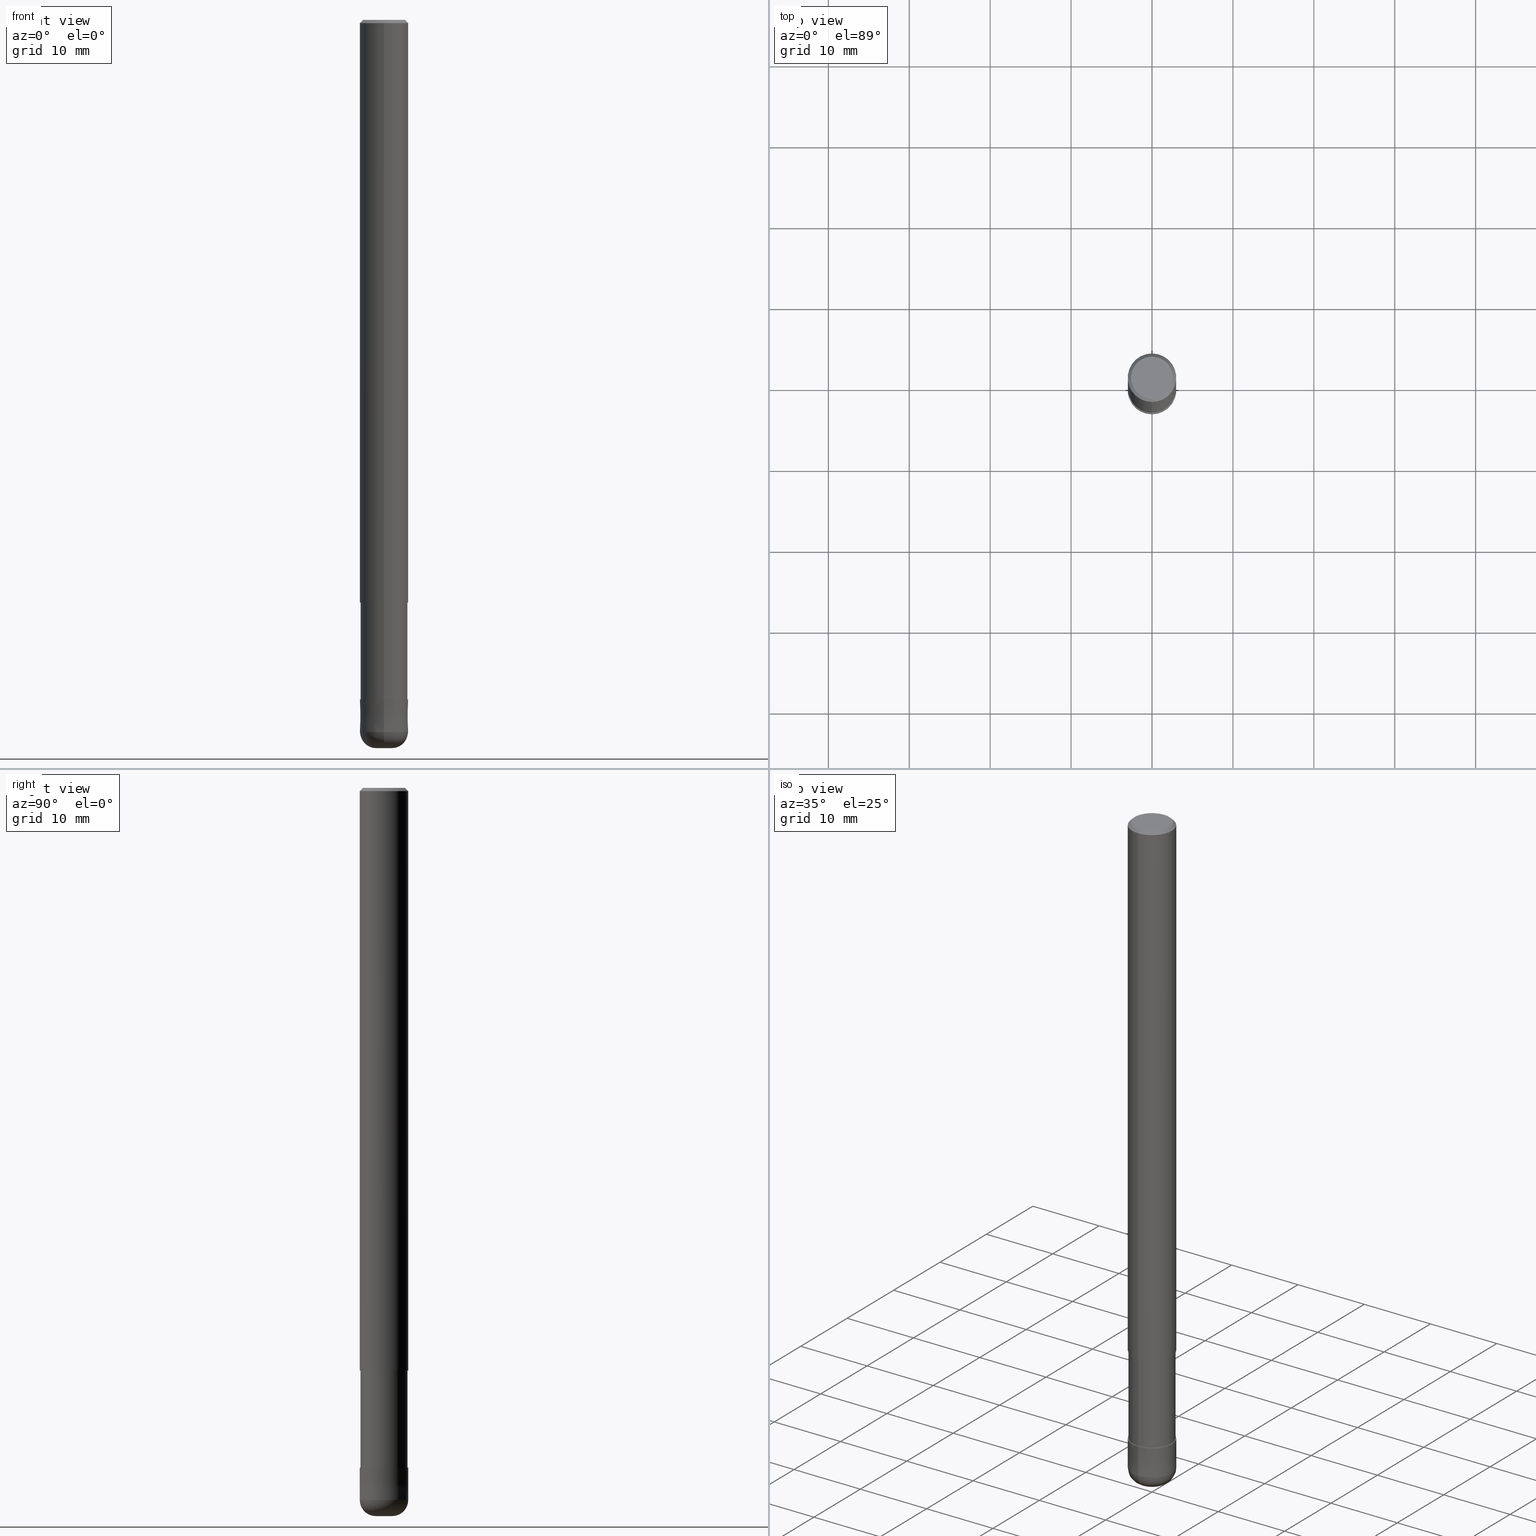
[diagram: canonical four-view strip — front | top / right | iso, engineering-drawing reading convention]
A machine part, canonical four-view strip (front | top / right | iso — engineering-drawing reading convention). The complete STEP part file that produces these views, byte-faithful:
ISO-10303-21;
HEADER;
FILE_DESCRIPTION(('no description'),'unknown implementation level');
FILE_NAME('HRRS4060-20-18-Huellk.stp','  ',('CIMSOURCE GmbH'),('CADClick - KiM GmbH - www.kimweb.de'),'unknown preprocess','ACIS','unknown authorization');
FILE_SCHEMA(('automotive_design'));
ENDSEC;
DATA;
#1=MECHANICAL_DESIGN_GEOMETRIC_PRESENTATION_REPRESENTATION(' ',(#14,#15,#16,#17,#18,#19,#20,#21,#22,#23,#24,#25,#26,#27,#28,#29,#30,#31,#32,#33,#34,#35,#36,#37,#38,#39,#40,#41,#42,#43,#44,#45,#46,#47,#48,#49,#50,#51,#52,#53,#54,#55,#56,#57,#58,#59,#60,#61,#62,#63,#64,#65,#66,#67,#68,#69,#70,#71,#72),#10);
#2=PRODUCT_DEFINITION_CONTEXT('',#73,'design');
#3=APPLICATION_PROTOCOL_DEFINITION('INTERNATIONAL STANDARD','automotive_design',1994,#73);
#4=PRODUCT_CATEGORY_RELATIONSHIP('NONE','NONE',#74,#75);
#5=SHAPE_DEFINITION_REPRESENTATION(#76,#77);
#6=PRODUCT_DEFINITION_CONTEXT('',#78,'design');
#7=APPLICATION_PROTOCOL_DEFINITION('INTERNATIONAL STANDARD','automotive_design',1994,#78);
#8=PRODUCT_CATEGORY_RELATIONSHIP('NONE','NONE',#79,#80);
#9=SHAPE_DEFINITION_REPRESENTATION(#81,#82);
#10= (GEOMETRIC_REPRESENTATION_CONTEXT(3)GLOBAL_UNCERTAINTY_ASSIGNED_CONTEXT((#85))GLOBAL_UNIT_ASSIGNED_CONTEXT((#87,#88,#89))REPRESENTATION_CONTEXT('NONE','WORKSPACE'));
#14=STYLED_ITEM('',(#91),#92);
#15=STYLED_ITEM('',(#93),#94);
#16=STYLED_ITEM('',(#95),#96);
#17=STYLED_ITEM('',(#97),#98);
#18=STYLED_ITEM('',(#99),#100);
#19=STYLED_ITEM('',(#101),#102);
#20=STYLED_ITEM('',(#103),#104);
#21=STYLED_ITEM('',(#105),#106);
#22=STYLED_ITEM('',(#107),#108);
#23=STYLED_ITEM('',(#109),#110);
#24=STYLED_ITEM('',(#111),#112);
#25=STYLED_ITEM('',(#113),#114);
#26=STYLED_ITEM('',(#115),#116);
#27=STYLED_ITEM('',(#117),#118);
#28=STYLED_ITEM('',(#119),#120);
#29=STYLED_ITEM('',(#121),#122);
#30=STYLED_ITEM('',(#123),#124);
#31=STYLED_ITEM('',(#125),#126);
#32=STYLED_ITEM('',(#127),#128);
#33=STYLED_ITEM('',(#129),#130);
#34=STYLED_ITEM('',(#131),#132);
#35=STYLED_ITEM('',(#133),#134);
#36=STYLED_ITEM('',(#135),#136);
#37=STYLED_ITEM('',(#137),#138);
#38=STYLED_ITEM('',(#139),#140);
#39=STYLED_ITEM('',(#141),#142);
#40=STYLED_ITEM('',(#143),#144);
#41=STYLED_ITEM('',(#145),#146);
#42=STYLED_ITEM('',(#147),#148);
#43=STYLED_ITEM('',(#149),#150);
#44=STYLED_ITEM('',(#151),#152);
#45=STYLED_ITEM('',(#153),#154);
#46=STYLED_ITEM('',(#155),#156);
#47=STYLED_ITEM('',(#157),#158);
#48=STYLED_ITEM('',(#159),#160);
#49=STYLED_ITEM('',(#161),#162);
#50=STYLED_ITEM('',(#163),#164);
#51=STYLED_ITEM('',(#165),#166);
#52=STYLED_ITEM('',(#167),#168);
#53=STYLED_ITEM('',(#169),#170);
#54=STYLED_ITEM('',(#171),#172);
#55=STYLED_ITEM('',(#173),#174);
#56=STYLED_ITEM('',(#175),#176);
#57=STYLED_ITEM('',(#177),#178);
#58=STYLED_ITEM('',(#179),#180);
#59=STYLED_ITEM('',(#181),#182);
#60=STYLED_ITEM('',(#183),#184);
#61=STYLED_ITEM('',(#185),#186);
#62=STYLED_ITEM('',(#187),#188);
#63=STYLED_ITEM('',(#189),#190);
#64=STYLED_ITEM('',(#191),#192);
#65=STYLED_ITEM('',(#193),#194);
#66=STYLED_ITEM('',(#195),#196);
#67=STYLED_ITEM('',(#197),#198);
#68=STYLED_ITEM('',(#199),#200);
#69=STYLED_ITEM('',(#201),#202);
#70=STYLED_ITEM('',(#203),#204);
#71=STYLED_ITEM('',(#205),#206);
#72=STYLED_ITEM('',(#207),#208);
#73=APPLICATION_CONTEXT(' ');
#74=PRODUCT_CATEGORY('part','NONE');
#75=PRODUCT_RELATED_PRODUCT_CATEGORY('detail',' ',(#209));
#76=PRODUCT_DEFINITION_SHAPE('NONE','NONE',#210);
#77=ADVANCED_BREP_SHAPE_REPRESENTATION('1',(#104,#211),#10);
#78=APPLICATION_CONTEXT(' ');
#79=PRODUCT_CATEGORY('part','NONE');
#80=PRODUCT_RELATED_PRODUCT_CATEGORY('detail',' ',(#212));
#81=PRODUCT_DEFINITION_SHAPE('NONE','NONE',#213);
#82=ADVANCED_BREP_SHAPE_REPRESENTATION('2',(#184,#214),#10);
#85=UNCERTAINTY_MEASURE_WITH_UNIT(LENGTH_MEASURE(1.0E-006),#87,'','');
#87= (CONVERSION_BASED_UNIT('MILLIMETRE',#217)LENGTH_UNIT()NAMED_UNIT(#220));
#88= (NAMED_UNIT(#222)PLANE_ANGLE_UNIT()SI_UNIT($,.RADIAN.));
#89= (NAMED_UNIT(#222)SOLID_ANGLE_UNIT()SI_UNIT($,.STERADIAN.));
#91=PRESENTATION_STYLE_ASSIGNMENT((#228));
#92=ADVANCED_FACE('',(#229),#230,.T.);
#93=PRESENTATION_STYLE_ASSIGNMENT((#231));
#94=EDGE_CURVE('',#148,#144,#232,.T.);
#95=PRESENTATION_STYLE_ASSIGNMENT((#233));
#96=VERTEX_POINT('',#234);
#97=PRESENTATION_STYLE_ASSIGNMENT((#235));
#98=EDGE_CURVE('',#206,#120,#236,.T.);
#99=PRESENTATION_STYLE_ASSIGNMENT((#237));
#100=EDGE_CURVE('',#118,#172,#238,.T.);
#101=PRESENTATION_STYLE_ASSIGNMENT((#239));
#102=EDGE_CURVE('',#142,#206,#240,.T.);
#103=PRESENTATION_STYLE_ASSIGNMENT((#241));
#104=MANIFOLD_SOLID_BREP('1',#242);
#105=PRESENTATION_STYLE_ASSIGNMENT((#243));
#106=EDGE_CURVE('',#96,#170,#244,.T.);
#107=PRESENTATION_STYLE_ASSIGNMENT((#245));
#108=VERTEX_POINT('',#246);
#109=PRESENTATION_STYLE_ASSIGNMENT((#247));
#110=EDGE_CURVE('',#146,#158,#248,.T.);
#111=PRESENTATION_STYLE_ASSIGNMENT((#249));
#112=VERTEX_POINT('',#250);
#113=PRESENTATION_STYLE_ASSIGNMENT((#251));
#114=EDGE_CURVE('',#112,#158,#252,.T.);
#115=PRESENTATION_STYLE_ASSIGNMENT((#253));
#116=EDGE_CURVE('',#172,#170,#254,.T.);
#117=PRESENTATION_STYLE_ASSIGNMENT((#255));
#118=VERTEX_POINT('',#256);
#119=PRESENTATION_STYLE_ASSIGNMENT((#257));
#120=VERTEX_POINT('',#258);
#121=PRESENTATION_STYLE_ASSIGNMENT((#259));
#122=EDGE_CURVE('',#144,#112,#260,.T.);
#123=PRESENTATION_STYLE_ASSIGNMENT((#261));
#124=VERTEX_POINT('',#262);
#125=PRESENTATION_STYLE_ASSIGNMENT((#263));
#126=ADVANCED_FACE('',(#264),#265,.T.);
#127=PRESENTATION_STYLE_ASSIGNMENT((#266));
#128=EDGE_CURVE('',#158,#112,#267,.T.);
#129=PRESENTATION_STYLE_ASSIGNMENT((#268));
#130=VERTEX_POINT('',#269);
#131=PRESENTATION_STYLE_ASSIGNMENT((#270));
#132=ADVANCED_FACE('',(#271),#272,.T.);
#133=PRESENTATION_STYLE_ASSIGNMENT((#273));
#134=EDGE_CURVE('',#144,#148,#274,.T.);
#135=PRESENTATION_STYLE_ASSIGNMENT((#275));
#136=ADVANCED_FACE('',(#276),#277,.T.);
#137=PRESENTATION_STYLE_ASSIGNMENT((#278));
#138=EDGE_CURVE('',#124,#170,#279,.T.);
#139=PRESENTATION_STYLE_ASSIGNMENT((#280));
#140=EDGE_CURVE('',#146,#130,#281,.T.);
#141=PRESENTATION_STYLE_ASSIGNMENT((#282));
#142=VERTEX_POINT('',#283);
#143=PRESENTATION_STYLE_ASSIGNMENT((#284));
#144=VERTEX_POINT('',#285);
#145=PRESENTATION_STYLE_ASSIGNMENT((#286));
#146=VERTEX_POINT('',#287);
#147=PRESENTATION_STYLE_ASSIGNMENT((#288));
#148=VERTEX_POINT('',#289);
#149=PRESENTATION_STYLE_ASSIGNMENT((#290));
#150=EDGE_CURVE('',#108,#142,#291,.T.);
#151=PRESENTATION_STYLE_ASSIGNMENT((#292));
#152=EDGE_CURVE('',#124,#168,#293,.T.);
#153=PRESENTATION_STYLE_ASSIGNMENT((#294));
#154=EDGE_CURVE('',#124,#118,#295,.T.);
#155=PRESENTATION_STYLE_ASSIGNMENT((#296));
#156=EDGE_CURVE('',#120,#108,#297,.T.);
#157=PRESENTATION_STYLE_ASSIGNMENT((#298));
#158=VERTEX_POINT('',#299);
#159=PRESENTATION_STYLE_ASSIGNMENT((#300));
#160=EDGE_CURVE('',#170,#124,#301,.T.);
#161=PRESENTATION_STYLE_ASSIGNMENT((#302));
#162=EDGE_CURVE('',#206,#142,#303,.T.);
#163=PRESENTATION_STYLE_ASSIGNMENT((#304));
#164=ADVANCED_FACE('',(#305,#306),#307,.T.);
#165=PRESENTATION_STYLE_ASSIGNMENT((#308));
#166=EDGE_CURVE('',#158,#148,#309,.T.);
#167=PRESENTATION_STYLE_ASSIGNMENT((#310));
#168=VERTEX_POINT('',#311);
#169=PRESENTATION_STYLE_ASSIGNMENT((#312));
#170=VERTEX_POINT('',#313);
#171=PRESENTATION_STYLE_ASSIGNMENT((#314));
#172=VERTEX_POINT('',#315);
#173=PRESENTATION_STYLE_ASSIGNMENT((#316));
#174=ADVANCED_FACE('',(#317),#318,.T.);
#175=PRESENTATION_STYLE_ASSIGNMENT((#319));
#176=EDGE_CURVE('',#96,#168,#320,.T.);
#177=PRESENTATION_STYLE_ASSIGNMENT((#321));
#178=ADVANCED_FACE('',(#322),#323,.T.);
#179=PRESENTATION_STYLE_ASSIGNMENT((#324));
#180=ADVANCED_FACE('',(#325),#326,.T.);
#181=PRESENTATION_STYLE_ASSIGNMENT((#327));
#182=ADVANCED_FACE('',(#328),#329,.T.);
#183=PRESENTATION_STYLE_ASSIGNMENT((#330));
#184=MANIFOLD_SOLID_BREP('2',#331);
#185=PRESENTATION_STYLE_ASSIGNMENT((#332));
#186=ADVANCED_FACE('',(#333),#334,.T.);
#187=PRESENTATION_STYLE_ASSIGNMENT((#335));
#188=ADVANCED_FACE('',(#336),#337,.T.);
#189=PRESENTATION_STYLE_ASSIGNMENT((#338));
#190=EDGE_CURVE('',#112,#130,#339,.T.);
#191=PRESENTATION_STYLE_ASSIGNMENT((#340));
#192=EDGE_CURVE('',#168,#96,#341,.T.);
#193=PRESENTATION_STYLE_ASSIGNMENT((#342));
#194=ADVANCED_FACE('',(#343),#344,.T.);
#195=PRESENTATION_STYLE_ASSIGNMENT((#345));
#196=EDGE_CURVE('',#172,#118,#346,.T.);
#197=PRESENTATION_STYLE_ASSIGNMENT((#347));
#198=ADVANCED_FACE('',(#348),#349,.T.);
#199=PRESENTATION_STYLE_ASSIGNMENT((#350));
#200=EDGE_CURVE('',#108,#120,#351,.T.);
#201=PRESENTATION_STYLE_ASSIGNMENT((#352));
#202=ADVANCED_FACE('',(#353),#354,.T.);
#203=PRESENTATION_STYLE_ASSIGNMENT((#355));
#204=ADVANCED_FACE('',(#356),#357,.T.);
#205=PRESENTATION_STYLE_ASSIGNMENT((#358));
#206=VERTEX_POINT('',#359);
#207=PRESENTATION_STYLE_ASSIGNMENT((#360));
#208=EDGE_CURVE('',#130,#146,#361,.T.);
#209=PRODUCT('1','1','PART-1-DESC',(#362));
#210=PRODUCT_DEFINITION('NONE','NONE',#363,#2);
#211=AXIS2_PLACEMENT_3D('',#364,#365,#366);
#212=PRODUCT('2','2','PART-2-DESC',(#367));
#213=PRODUCT_DEFINITION('NONE','NONE',#368,#6);
#214=AXIS2_PLACEMENT_3D('',#369,#370,#371);
#217=LENGTH_MEASURE_WITH_UNIT(LENGTH_MEASURE(1.0),#372);
#220=DIMENSIONAL_EXPONENTS(1.0,0.0,0.0,0.0,0.0,0.0,0.0);
#222=DIMENSIONAL_EXPONENTS(0.0,0.0,0.0,0.0,0.0,0.0,0.0);
#228=SURFACE_STYLE_USAGE(.BOTH.,#373);
#229=FACE_OUTER_BOUND('',#374,.T.);
#230=PLANE('',#375);
#231=CURVE_STYLE('',#376,POSITIVE_LENGTH_MEASURE(1.0E-006),#377);
#232=CIRCLE('',#378,2.6);
#233=POINT_STYLE(' ',#379,POSITIVE_LENGTH_MEASURE(1.0E-006),#380);
#234=CARTESIAN_POINT('',(0.0,1.0,-90.0));
#235=CURVE_STYLE('',#381,POSITIVE_LENGTH_MEASURE(1.0E-006),#382);
#236=LINE('',#383,#384);
#237=CURVE_STYLE('',#385,POSITIVE_LENGTH_MEASURE(1.0E-006),#386);
#238=CIRCLE('',#387,2.9999);
#239=CURVE_STYLE('',#388,POSITIVE_LENGTH_MEASURE(1.0E-006),#389);
#240=CIRCLE('',#390,2.90995);
#241=SURFACE_STYLE_USAGE(.BOTH.,#391);
#242=CLOSED_SHELL('',(#186,#180,#126,#164,#132,#202,#198,#188,#174));
#243=CURVE_STYLE('',#392,POSITIVE_LENGTH_MEASURE(1.0E-006),#393);
#244=CIRCLE('',#394,2.0);
#245=POINT_STYLE(' ',#395,POSITIVE_LENGTH_MEASURE(1.0E-006),#396);
#246=CARTESIAN_POINT('',(0.0,2.90995,-72.0));
#247=CURVE_STYLE('',#397,POSITIVE_LENGTH_MEASURE(1.0E-006),#398);
#248=LINE('',#399,#400);
#249=POINT_STYLE(' ',#401,POSITIVE_LENGTH_MEASURE(1.0E-006),#402);
#250=CARTESIAN_POINT('',(0.0,3.0,-0.400000000000006));
#251=CURVE_STYLE('',#403,POSITIVE_LENGTH_MEASURE(1.0E-006),#404);
#252=CIRCLE('',#405,3.0);
#253=CURVE_STYLE('',#406,POSITIVE_LENGTH_MEASURE(1.0E-006),#407);
#254=LINE('',#408,#409);
#255=POINT_STYLE(' ',#410,POSITIVE_LENGTH_MEASURE(1.0E-006),#411);
#256=CARTESIAN_POINT('',(3.67369660083175E-016,-2.9999,-84.0));
#257=POINT_STYLE(' ',#412,POSITIVE_LENGTH_MEASURE(1.0E-006),#413);
#258=CARTESIAN_POINT('',(3.56354325930543E-016,-2.90995,-72.0));
#259=CURVE_STYLE('',#414,POSITIVE_LENGTH_MEASURE(1.0E-006),#415);
#260=LINE('',#416,#417);
#261=POINT_STYLE(' ',#418,POSITIVE_LENGTH_MEASURE(1.0E-006),#419);
#262=CARTESIAN_POINT('',(3.67381906146713E-016,-3.0,-88.0));
#263=SURFACE_STYLE_USAGE(.BOTH.,#420);
#264=FACE_OUTER_BOUND('',#421,.T.);
#265=CONICAL_SURFACE('',#422,2.8,0.785398163397441);
#266=CURVE_STYLE('',#423,POSITIVE_LENGTH_MEASURE(1.0E-006),#424);
#267=CIRCLE('',#425,3.0);
#268=POINT_STYLE(' ',#426,POSITIVE_LENGTH_MEASURE(1.0E-006),#427);
#269=CARTESIAN_POINT('',(0.0,3.0,-72.0));
#270=SURFACE_STYLE_USAGE(.BOTH.,#428);
#271=FACE_OUTER_BOUND('',#429,.T.);
#272=PLANE('',#430);
#273=CURVE_STYLE('',#431,POSITIVE_LENGTH_MEASURE(1.0E-006),#432);
#274=CIRCLE('',#433,2.6);
#275=SURFACE_STYLE_USAGE(.BOTH.,#434);
#276=FACE_OUTER_BOUND('',#435,.T.);
#277=CONICAL_SURFACE('',#436,2.99995,2.49999999948444E-005);
#278=CURVE_STYLE('',#437,POSITIVE_LENGTH_MEASURE(1.0E-006),#438);
#279=CIRCLE('',#439,3.0);
#280=CURVE_STYLE('',#440,POSITIVE_LENGTH_MEASURE(1.0E-006),#441);
#281=CIRCLE('',#442,3.0);
#282=POINT_STYLE(' ',#443,POSITIVE_LENGTH_MEASURE(1.0E-006),#444);
#283=CARTESIAN_POINT('',(0.0,2.90995,-84.0));
#284=POINT_STYLE(' ',#445,POSITIVE_LENGTH_MEASURE(1.0E-006),#446);
#285=CARTESIAN_POINT('',(0.0,2.6,0.0));
#286=POINT_STYLE(' ',#447,POSITIVE_LENGTH_MEASURE(1.0E-006),#448);
#287=CARTESIAN_POINT('',(3.67381906146713E-016,-3.0,-72.0));
#288=POINT_STYLE(' ',#449,POSITIVE_LENGTH_MEASURE(1.0E-006),#450);
#289=CARTESIAN_POINT('',(3.18397651993818E-016,-2.6,0.0));
#290=CURVE_STYLE('',#451,POSITIVE_LENGTH_MEASURE(1.0E-006),#452);
#291=LINE('',#453,#454);
#292=CURVE_STYLE('',#455,POSITIVE_LENGTH_MEASURE(1.0E-006),#456);
#293=CIRCLE('',#457,2.0);
#294=CURVE_STYLE('',#458,POSITIVE_LENGTH_MEASURE(1.0E-006),#459);
#295=LINE('',#460,#461);
#296=CURVE_STYLE('',#462,POSITIVE_LENGTH_MEASURE(1.0E-006),#463);
#297=CIRCLE('',#464,2.90995);
#298=POINT_STYLE(' ',#465,POSITIVE_LENGTH_MEASURE(1.0E-006),#466);
#299=CARTESIAN_POINT('',(3.67381906146713E-016,-3.0,-0.400000000000006));
#300=CURVE_STYLE('',#467,POSITIVE_LENGTH_MEASURE(1.0E-006),#468);
#301=CIRCLE('',#469,3.0);
#302=CURVE_STYLE('',#470,POSITIVE_LENGTH_MEASURE(1.0E-006),#471);
#303=CIRCLE('',#472,2.90995);
#304=SURFACE_STYLE_USAGE(.BOTH.,#473);
#305=FACE_OUTER_BOUND('',#474,.T.);
#306=FACE_BOUND('',#475,.T.);
#307=PLANE('',#476);
#308=CURVE_STYLE('',#477,POSITIVE_LENGTH_MEASURE(1.0E-006),#478);
#309=LINE('',#479,#480);
#310=POINT_STYLE(' ',#481,POSITIVE_LENGTH_MEASURE(1.0E-006),#482);
#311=CARTESIAN_POINT('',(1.22460635382238E-016,-1.0,-90.0));
#312=POINT_STYLE(' ',#483,POSITIVE_LENGTH_MEASURE(1.0E-006),#484);
#313=CARTESIAN_POINT('',(0.0,3.0,-88.0));
#314=POINT_STYLE(' ',#485,POSITIVE_LENGTH_MEASURE(1.0E-006),#486);
#315=CARTESIAN_POINT('',(0.0,2.9999,-84.0));
#316=SURFACE_STYLE_USAGE(.BOTH.,#487);
#317=FACE_OUTER_BOUND('',#488,.T.);
#318=PLANE('',#489);
#319=CURVE_STYLE('',#490,POSITIVE_LENGTH_MEASURE(1.0E-006),#491);
#320=CIRCLE('',#492,1.0);
#321=SURFACE_STYLE_USAGE(.BOTH.,#493);
#322=FACE_OUTER_BOUND('',#494,.T.);
#323=PLANE('',#495);
#324=SURFACE_STYLE_USAGE(.BOTH.,#496);
#325=FACE_OUTER_BOUND('',#497,.T.);
#326=CYLINDRICAL_SURFACE('',#498,3.0);
#327=SURFACE_STYLE_USAGE(.BOTH.,#499);
#328=FACE_OUTER_BOUND('',#500,.T.);
#329=TOROIDAL_SURFACE('',#501,0.999999999999998,2.0);
#330=SURFACE_STYLE_USAGE(.BOTH.,#502);
#331=CLOSED_SHELL('',(#182,#204,#178,#136,#194,#92));
#332=SURFACE_STYLE_USAGE(.BOTH.,#503);
#333=FACE_OUTER_BOUND('',#504,.T.);
#334=CYLINDRICAL_SURFACE('',#505,2.90995);
#335=SURFACE_STYLE_USAGE(.BOTH.,#506);
#336=FACE_OUTER_BOUND('',#507,.T.);
#337=CYLINDRICAL_SURFACE('',#508,2.90995);
#338=CURVE_STYLE('',#509,POSITIVE_LENGTH_MEASURE(1.0E-006),#510);
#339=LINE('',#511,#512);
#340=CURVE_STYLE('',#513,POSITIVE_LENGTH_MEASURE(1.0E-006),#514);
#341=CIRCLE('',#515,1.0);
#342=SURFACE_STYLE_USAGE(.BOTH.,#516);
#343=FACE_OUTER_BOUND('',#517,.T.);
#344=TOROIDAL_SURFACE('',#518,0.999999999999998,2.0);
#345=CURVE_STYLE('',#519,POSITIVE_LENGTH_MEASURE(1.0E-006),#520);
#346=CIRCLE('',#521,2.9999);
#347=SURFACE_STYLE_USAGE(.BOTH.,#522);
#348=FACE_OUTER_BOUND('',#523,.T.);
#349=CYLINDRICAL_SURFACE('',#524,3.0);
#350=CURVE_STYLE('',#525,POSITIVE_LENGTH_MEASURE(1.0E-006),#526);
#351=CIRCLE('',#527,2.90995);
#352=SURFACE_STYLE_USAGE(.BOTH.,#528);
#353=FACE_OUTER_BOUND('',#529,.T.);
#354=CONICAL_SURFACE('',#530,2.8,0.785398163397441);
#355=SURFACE_STYLE_USAGE(.BOTH.,#531);
#356=FACE_OUTER_BOUND('',#532,.T.);
#357=CONICAL_SURFACE('',#533,2.99995,2.49999999948444E-005);
#358=POINT_STYLE(' ',#534,POSITIVE_LENGTH_MEASURE(1.0E-006),#535);
#359=CARTESIAN_POINT('',(3.56354325930543E-016,-2.90995,-84.0));
#360=CURVE_STYLE('',#536,POSITIVE_LENGTH_MEASURE(1.0E-006),#537);
#361=CIRCLE('',#538,3.0);
#362=PRODUCT_CONTEXT('',#73,'mechanical');
#363=PRODUCT_DEFINITION_FORMATION_WITH_SPECIFIED_SOURCE(' ','NONE',#209,.NOT_KNOWN.);
#364=CARTESIAN_POINT('',(0.0,0.0,0.0));
#365=DIRECTION('',(0.0,0.0,1.0));
#366=DIRECTION('',(1.0,0.0,0.0));
#367=PRODUCT_CONTEXT('',#78,'mechanical');
#368=PRODUCT_DEFINITION_FORMATION_WITH_SPECIFIED_SOURCE(' ','NONE',#212,.NOT_KNOWN.);
#369=CARTESIAN_POINT('',(0.0,0.0,0.0));
#370=DIRECTION('',(0.0,0.0,1.0));
#371=DIRECTION('',(1.0,0.0,0.0));
#372= (NAMED_UNIT(#220)LENGTH_UNIT()SI_UNIT(.MILLI.,.METRE.));
#373=SURFACE_SIDE_STYLE('',(#540));
#374=EDGE_LOOP('',(#541,#542));
#375=AXIS2_PLACEMENT_3D('',#543,#544,#545);
#376=DRAUGHTING_PRE_DEFINED_CURVE_FONT('continuous');
#377=COLOUR_RGB('',0.498039215803146,0.498039215803146,0.498039215803146);
#378=AXIS2_PLACEMENT_3D('',#546,#547,#548);
#379=PRE_DEFINED_MARKER('');
#380=COLOUR_RGB('',0.800000011920929,0.800000011920929,0.800000011920929);
#381=DRAUGHTING_PRE_DEFINED_CURVE_FONT('continuous');
#382=COLOUR_RGB('',0.498039215803146,0.498039215803146,0.498039215803146);
#383=CARTESIAN_POINT('',(3.56354325930543E-016,-2.90995,-78.0));
#384=VECTOR('',#549,1.0);
#385=DRAUGHTING_PRE_DEFINED_CURVE_FONT('continuous');
#386=COLOUR_RGB('',0.800000011920929,0.800000011920929,0.800000011920929);
#387=AXIS2_PLACEMENT_3D('',#550,#551,#552);
#388=DRAUGHTING_PRE_DEFINED_CURVE_FONT('continuous');
#389=COLOUR_RGB('',0.498039215803146,0.498039215803146,0.498039215803146);
#390=AXIS2_PLACEMENT_3D('',#553,#554,#555);
#391=SURFACE_SIDE_STYLE('',(#556));
#392=DRAUGHTING_PRE_DEFINED_CURVE_FONT('continuous');
#393=COLOUR_RGB('',0.800000011920929,0.800000011920929,0.800000011920929);
#394=AXIS2_PLACEMENT_3D('',#557,#558,#559);
#395=PRE_DEFINED_MARKER('');
#396=COLOUR_RGB('',0.498039215803146,0.498039215803146,0.498039215803146);
#397=DRAUGHTING_PRE_DEFINED_CURVE_FONT('continuous');
#398=COLOUR_RGB('',0.498039215803146,0.498039215803146,0.498039215803146);
#399=CARTESIAN_POINT('',(3.67381906146713E-016,-3.0,-36.2));
#400=VECTOR('',#560,1.0);
#401=PRE_DEFINED_MARKER('');
#402=COLOUR_RGB('',0.498039215803146,0.498039215803146,0.498039215803146);
#403=DRAUGHTING_PRE_DEFINED_CURVE_FONT('continuous');
#404=COLOUR_RGB('',0.498039215803146,0.498039215803146,0.498039215803146);
#405=AXIS2_PLACEMENT_3D('',#561,#562,#563);
#406=DRAUGHTING_PRE_DEFINED_CURVE_FONT('continuous');
#407=COLOUR_RGB('',0.800000011920929,0.800000011920929,0.800000011920929);
#408=CARTESIAN_POINT('',(-3.67375783114944E-016,2.99995,-86.0));
#409=VECTOR('',#564,1.0);
#410=PRE_DEFINED_MARKER('');
#411=COLOUR_RGB('',0.800000011920929,0.800000011920929,0.800000011920929);
#412=PRE_DEFINED_MARKER('');
#413=COLOUR_RGB('',0.498039215803146,0.498039215803146,0.498039215803146);
#414=DRAUGHTING_PRE_DEFINED_CURVE_FONT('continuous');
#415=COLOUR_RGB('',0.498039215803146,0.498039215803146,0.498039215803146);
#416=CARTESIAN_POINT('',(-3.42889779070266E-016,2.8,-0.200000000000003));
#417=VECTOR('',#565,1.0);
#418=PRE_DEFINED_MARKER('');
#419=COLOUR_RGB('',0.800000011920929,0.800000011920929,0.800000011920929);
#420=SURFACE_SIDE_STYLE('',(#566));
#421=EDGE_LOOP('',(#567,#568,#569,#570));
#422=AXIS2_PLACEMENT_3D('',#571,#572,#573);
#423=DRAUGHTING_PRE_DEFINED_CURVE_FONT('continuous');
#424=COLOUR_RGB('',0.498039215803146,0.498039215803146,0.498039215803146);
#425=AXIS2_PLACEMENT_3D('',#574,#575,#576);
#426=PRE_DEFINED_MARKER('');
#427=COLOUR_RGB('',0.498039215803146,0.498039215803146,0.498039215803146);
#428=SURFACE_SIDE_STYLE('',(#577));
#429=EDGE_LOOP('',(#578,#579));
#430=AXIS2_PLACEMENT_3D('',#580,#581,#582);
#431=DRAUGHTING_PRE_DEFINED_CURVE_FONT('continuous');
#432=COLOUR_RGB('',0.498039215803146,0.498039215803146,0.498039215803146);
#433=AXIS2_PLACEMENT_3D('',#583,#584,#585);
#434=SURFACE_SIDE_STYLE('',(#586));
#435=EDGE_LOOP('',(#587,#588,#589,#590));
#436=AXIS2_PLACEMENT_3D('',#591,#592,#593);
#437=DRAUGHTING_PRE_DEFINED_CURVE_FONT('continuous');
#438=COLOUR_RGB('',0.800000011920929,0.800000011920929,0.800000011920929);
#439=AXIS2_PLACEMENT_3D('',#594,#595,#596);
#440=DRAUGHTING_PRE_DEFINED_CURVE_FONT('continuous');
#441=COLOUR_RGB('',0.498039215803146,0.498039215803146,0.498039215803146);
#442=AXIS2_PLACEMENT_3D('',#597,#598,#599);
#443=PRE_DEFINED_MARKER('');
#444=COLOUR_RGB('',0.498039215803146,0.498039215803146,0.498039215803146);
#445=PRE_DEFINED_MARKER('');
#446=COLOUR_RGB('',0.498039215803146,0.498039215803146,0.498039215803146);
#447=PRE_DEFINED_MARKER('');
#448=COLOUR_RGB('',0.498039215803146,0.498039215803146,0.498039215803146);
#449=PRE_DEFINED_MARKER('');
#450=COLOUR_RGB('',0.498039215803146,0.498039215803146,0.498039215803146);
#451=DRAUGHTING_PRE_DEFINED_CURVE_FONT('continuous');
#452=COLOUR_RGB('',0.498039215803146,0.498039215803146,0.498039215803146);
#453=CARTESIAN_POINT('',(-3.56354325930543E-016,2.90995,-78.0));
#454=VECTOR('',#600,1.0);
#455=DRAUGHTING_PRE_DEFINED_CURVE_FONT('continuous');
#456=COLOUR_RGB('',0.800000011920929,0.800000011920929,0.800000011920929);
#457=AXIS2_PLACEMENT_3D('',#601,#602,#603);
#458=DRAUGHTING_PRE_DEFINED_CURVE_FONT('continuous');
#459=COLOUR_RGB('',0.800000011920929,0.800000011920929,0.800000011920929);
#460=CARTESIAN_POINT('',(3.67375783114944E-016,-2.99995,-86.0));
#461=VECTOR('',#604,1.0);
#462=DRAUGHTING_PRE_DEFINED_CURVE_FONT('continuous');
#463=COLOUR_RGB('',0.498039215803146,0.498039215803146,0.498039215803146);
#464=AXIS2_PLACEMENT_3D('',#605,#606,#607);
#465=PRE_DEFINED_MARKER('');
#466=COLOUR_RGB('',0.498039215803146,0.498039215803146,0.498039215803146);
#467=DRAUGHTING_PRE_DEFINED_CURVE_FONT('continuous');
#468=COLOUR_RGB('',0.800000011920929,0.800000011920929,0.800000011920929);
#469=AXIS2_PLACEMENT_3D('',#608,#609,#610);
#470=DRAUGHTING_PRE_DEFINED_CURVE_FONT('continuous');
#471=COLOUR_RGB('',0.498039215803146,0.498039215803146,0.498039215803146);
#472=AXIS2_PLACEMENT_3D('',#611,#612,#613);
#473=SURFACE_SIDE_STYLE('',(#614));
#474=EDGE_LOOP('',(#615,#616));
#475=EDGE_LOOP('',(#617,#618));
#476=AXIS2_PLACEMENT_3D('',#619,#620,#621);
#477=DRAUGHTING_PRE_DEFINED_CURVE_FONT('continuous');
#478=COLOUR_RGB('',0.498039215803146,0.498039215803146,0.498039215803146);
#479=CARTESIAN_POINT('',(3.42889779070266E-016,-2.8,-0.200000000000003));
#480=VECTOR('',#622,1.0);
#481=PRE_DEFINED_MARKER('');
#482=COLOUR_RGB('',0.800000011920929,0.800000011920929,0.800000011920929);
#483=PRE_DEFINED_MARKER('');
#484=COLOUR_RGB('',0.800000011920929,0.800000011920929,0.800000011920929);
#485=PRE_DEFINED_MARKER('');
#486=COLOUR_RGB('',0.800000011920929,0.800000011920929,0.800000011920929);
#487=SURFACE_SIDE_STYLE('',(#623));
#488=EDGE_LOOP('',(#624,#625));
#489=AXIS2_PLACEMENT_3D('',#626,#627,#628);
#490=DRAUGHTING_PRE_DEFINED_CURVE_FONT('continuous');
#491=COLOUR_RGB('',0.800000011920929,0.800000011920929,0.800000011920929);
#492=AXIS2_PLACEMENT_3D('',#629,#630,#631);
#493=SURFACE_SIDE_STYLE('',(#632));
#494=EDGE_LOOP('',(#633,#634));
#495=AXIS2_PLACEMENT_3D('',#635,#636,#637);
#496=SURFACE_SIDE_STYLE('',(#638));
#497=EDGE_LOOP('',(#639,#640,#641,#642));
#498=AXIS2_PLACEMENT_3D('',#643,#644,#645);
#499=SURFACE_SIDE_STYLE('',(#646));
#500=EDGE_LOOP('',(#647,#648,#649,#650));
#501=AXIS2_PLACEMENT_3D('',#651,#652,#653);
#502=SURFACE_SIDE_STYLE('',(#654));
#503=SURFACE_SIDE_STYLE('',(#655));
#504=EDGE_LOOP('',(#656,#657,#658,#659));
#505=AXIS2_PLACEMENT_3D('',#660,#661,#662);
#506=SURFACE_SIDE_STYLE('',(#663));
#507=EDGE_LOOP('',(#664,#665,#666,#667));
#508=AXIS2_PLACEMENT_3D('',#668,#669,#670);
#509=DRAUGHTING_PRE_DEFINED_CURVE_FONT('continuous');
#510=COLOUR_RGB('',0.498039215803146,0.498039215803146,0.498039215803146);
#511=CARTESIAN_POINT('',(-3.67381906146713E-016,3.0,-36.2));
#512=VECTOR('',#671,1.0);
#513=DRAUGHTING_PRE_DEFINED_CURVE_FONT('continuous');
#514=COLOUR_RGB('',0.800000011920929,0.800000011920929,0.800000011920929);
#515=AXIS2_PLACEMENT_3D('',#672,#673,#674);
#516=SURFACE_SIDE_STYLE('',(#675));
#517=EDGE_LOOP('',(#676,#677,#678,#679));
#518=AXIS2_PLACEMENT_3D('',#680,#681,#682);
#519=DRAUGHTING_PRE_DEFINED_CURVE_FONT('continuous');
#520=COLOUR_RGB('',0.800000011920929,0.800000011920929,0.800000011920929);
#521=AXIS2_PLACEMENT_3D('',#683,#684,#685);
#522=SURFACE_SIDE_STYLE('',(#686));
#523=EDGE_LOOP('',(#687,#688,#689,#690));
#524=AXIS2_PLACEMENT_3D('',#691,#692,#693);
#525=DRAUGHTING_PRE_DEFINED_CURVE_FONT('continuous');
#526=COLOUR_RGB('',0.498039215803146,0.498039215803146,0.498039215803146);
#527=AXIS2_PLACEMENT_3D('',#694,#695,#696);
#528=SURFACE_SIDE_STYLE('',(#697));
#529=EDGE_LOOP('',(#698,#699,#700,#701));
#530=AXIS2_PLACEMENT_3D('',#702,#703,#704);
#531=SURFACE_SIDE_STYLE('',(#705));
#532=EDGE_LOOP('',(#706,#707,#708,#709));
#533=AXIS2_PLACEMENT_3D('',#710,#711,#712);
#534=PRE_DEFINED_MARKER('');
#535=COLOUR_RGB('',0.498039215803146,0.498039215803146,0.498039215803146);
#536=DRAUGHTING_PRE_DEFINED_CURVE_FONT('continuous');
#537=COLOUR_RGB('',0.498039215803146,0.498039215803146,0.498039215803146);
#538=AXIS2_PLACEMENT_3D('',#713,#714,#715);
#540=SURFACE_STYLE_FILL_AREA(#716);
#541=ORIENTED_EDGE('',*,*,#176,.T.);
#542=ORIENTED_EDGE('',*,*,#192,.T.);
#543=CARTESIAN_POINT('',(0.0,0.5,-90.0));
#544=DIRECTION('',(0.0,0.0,-1.0));
#545=DIRECTION('',(0.0,1.0,0.0));
#546=CARTESIAN_POINT('',(0.0,0.0,0.0));
#547=DIRECTION('',(0.0,0.0,-1.0));
#548=DIRECTION('',(0.0,1.0,0.0));
#549=DIRECTION('',(-0.0,-0.0,1.0));
#550=CARTESIAN_POINT('',(0.0,0.0,-84.0));
#551=DIRECTION('',(0.0,0.0,-1.0));
#552=DIRECTION('',(0.0,1.0,0.0));
#553=CARTESIAN_POINT('',(0.0,0.0,-84.0));
#554=DIRECTION('',(0.0,0.0,-1.0));
#555=DIRECTION('',(0.0,1.0,0.0));
#556=SURFACE_STYLE_FILL_AREA(#717);
#557=CARTESIAN_POINT('',(-1.22460635382238E-016,0.999999999999998,-88.0));
#558=DIRECTION('',(1.0,1.22460635382238E-016,0.0));
#559=DIRECTION('',(-1.22460635382238E-016,1.0,0.0));
#560=DIRECTION('',(-0.0,-0.0,1.0));
#561=CARTESIAN_POINT('',(0.0,0.0,-0.400000000000006));
#562=DIRECTION('',(0.0,0.0,-1.0));
#563=DIRECTION('',(0.0,1.0,0.0));
#564=DIRECTION('',(-3.06151588360568E-021,2.49999999922403E-005,-0.9999999996875));
#565=DIRECTION('',(-8.65927457071929E-017,0.707106781186542,-0.707106781186553));
#566=SURFACE_STYLE_FILL_AREA(#718);
#567=ORIENTED_EDGE('',*,*,#122,.F.);
#568=ORIENTED_EDGE('',*,*,#134,.T.);
#569=ORIENTED_EDGE('',*,*,#166,.F.);
#570=ORIENTED_EDGE('',*,*,#114,.F.);
#571=CARTESIAN_POINT('',(0.0,0.0,-0.200000000000003));
#572=DIRECTION('',(0.0,-0.0,-1.0));
#573=DIRECTION('',(0.0,1.0,0.0));
#574=CARTESIAN_POINT('',(0.0,0.0,-0.400000000000006));
#575=DIRECTION('',(0.0,0.0,-1.0));
#576=DIRECTION('',(0.0,1.0,0.0));
#577=SURFACE_STYLE_FILL_AREA(#719);
#578=ORIENTED_EDGE('',*,*,#134,.F.);
#579=ORIENTED_EDGE('',*,*,#94,.F.);
#580=CARTESIAN_POINT('',(0.0,1.3,0.0));
#581=DIRECTION('',(-0.0,0.0,1.0));
#582=DIRECTION('',(0.0,-1.0,0.0));
#583=CARTESIAN_POINT('',(0.0,0.0,0.0));
#584=DIRECTION('',(0.0,0.0,-1.0));
#585=DIRECTION('',(0.0,1.0,0.0));
#586=SURFACE_STYLE_FILL_AREA(#720);
#587=ORIENTED_EDGE('',*,*,#116,.T.);
#588=ORIENTED_EDGE('',*,*,#138,.F.);
#589=ORIENTED_EDGE('',*,*,#154,.T.);
#590=ORIENTED_EDGE('',*,*,#100,.T.);
#591=CARTESIAN_POINT('',(0.0,0.0,-86.0));
#592=DIRECTION('',(0.0,-0.0,-1.0));
#593=DIRECTION('',(0.0,1.0,0.0));
#594=CARTESIAN_POINT('',(0.0,0.0,-88.0));
#595=DIRECTION('',(0.0,0.0,-1.0));
#596=DIRECTION('',(0.0,1.0,0.0));
#597=CARTESIAN_POINT('',(0.0,0.0,-72.0));
#598=DIRECTION('',(0.0,0.0,-1.0));
#599=DIRECTION('',(0.0,1.0,0.0));
#600=DIRECTION('',(0.0,0.0,-1.0));
#601=CARTESIAN_POINT('',(1.22460635382238E-016,-0.999999999999998,-88.0));
#602=DIRECTION('',(1.0,1.22460635382238E-016,0.0));
#603=DIRECTION('',(1.22460635382238E-016,-1.0,-0.0));
#604=DIRECTION('',(-3.06151588360568E-021,2.49999999922403E-005,0.9999999996875));
#605=CARTESIAN_POINT('',(0.0,0.0,-72.0));
#606=DIRECTION('',(0.0,0.0,-1.0));
#607=DIRECTION('',(0.0,1.0,0.0));
#608=CARTESIAN_POINT('',(0.0,0.0,-88.0));
#609=DIRECTION('',(0.0,0.0,-1.0));
#610=DIRECTION('',(0.0,1.0,0.0));
#611=CARTESIAN_POINT('',(0.0,0.0,-84.0));
#612=DIRECTION('',(0.0,0.0,-1.0));
#613=DIRECTION('',(0.0,1.0,0.0));
#614=SURFACE_STYLE_FILL_AREA(#721);
#615=ORIENTED_EDGE('',*,*,#208,.T.);
#616=ORIENTED_EDGE('',*,*,#140,.T.);
#617=ORIENTED_EDGE('',*,*,#200,.F.);
#618=ORIENTED_EDGE('',*,*,#156,.F.);
#619=CARTESIAN_POINT('',(0.0,1.5,-72.0));
#620=DIRECTION('',(0.0,0.0,-1.0));
#621=DIRECTION('',(0.0,1.0,0.0));
#622=DIRECTION('',(-8.65927457071929E-017,0.707106781186542,0.707106781186553));
#623=SURFACE_STYLE_FILL_AREA(#722);
#624=ORIENTED_EDGE('',*,*,#102,.T.);
#625=ORIENTED_EDGE('',*,*,#162,.T.);
#626=CARTESIAN_POINT('',(0.0,1.454975,-84.0));
#627=DIRECTION('',(0.0,0.0,-1.0));
#628=DIRECTION('',(0.0,1.0,0.0));
#629=CARTESIAN_POINT('',(0.0,0.0,-90.0));
#630=DIRECTION('',(0.0,0.0,-1.0));
#631=DIRECTION('',(0.0,1.0,0.0));
#632=SURFACE_STYLE_FILL_AREA(#723);
#633=ORIENTED_EDGE('',*,*,#196,.F.);
#634=ORIENTED_EDGE('',*,*,#100,.F.);
#635=CARTESIAN_POINT('',(0.0,1.49995,-84.0));
#636=DIRECTION('',(-0.0,0.0,1.0));
#637=DIRECTION('',(0.0,-1.0,0.0));
#638=SURFACE_STYLE_FILL_AREA(#724);
#639=ORIENTED_EDGE('',*,*,#190,.F.);
#640=ORIENTED_EDGE('',*,*,#114,.T.);
#641=ORIENTED_EDGE('',*,*,#110,.F.);
#642=ORIENTED_EDGE('',*,*,#208,.F.);
#643=CARTESIAN_POINT('',(0.0,0.0,-36.2));
#644=DIRECTION('',(-0.0,-0.0,1.0));
#645=DIRECTION('',(0.0,1.0,0.0));
#646=SURFACE_STYLE_FILL_AREA(#725);
#647=ORIENTED_EDGE('',*,*,#152,.F.);
#648=ORIENTED_EDGE('',*,*,#138,.T.);
#649=ORIENTED_EDGE('',*,*,#106,.F.);
#650=ORIENTED_EDGE('',*,*,#192,.F.);
#651=CARTESIAN_POINT('',(0.0,0.0,-88.0));
#652=DIRECTION('',(0.0,0.0,-1.0));
#653=DIRECTION('',(0.0,-1.0,0.0));
#654=SURFACE_STYLE_FILL_AREA(#726);
#655=SURFACE_STYLE_FILL_AREA(#727);
#656=ORIENTED_EDGE('',*,*,#150,.F.);
#657=ORIENTED_EDGE('',*,*,#200,.T.);
#658=ORIENTED_EDGE('',*,*,#98,.F.);
#659=ORIENTED_EDGE('',*,*,#102,.F.);
#660=CARTESIAN_POINT('',(0.0,0.0,-78.0));
#661=DIRECTION('',(-0.0,-0.0,1.0));
#662=DIRECTION('',(0.0,1.0,0.0));
#663=SURFACE_STYLE_FILL_AREA(#728);
#664=ORIENTED_EDGE('',*,*,#150,.T.);
#665=ORIENTED_EDGE('',*,*,#162,.F.);
#666=ORIENTED_EDGE('',*,*,#98,.T.);
#667=ORIENTED_EDGE('',*,*,#156,.T.);
#668=CARTESIAN_POINT('',(0.0,0.0,-78.0));
#669=DIRECTION('',(-0.0,-0.0,1.0));
#670=DIRECTION('',(0.0,1.0,0.0));
#671=DIRECTION('',(0.0,0.0,-1.0));
#672=CARTESIAN_POINT('',(0.0,0.0,-90.0));
#673=DIRECTION('',(0.0,0.0,-1.0));
#674=DIRECTION('',(0.0,1.0,0.0));
#675=SURFACE_STYLE_FILL_AREA(#729);
#676=ORIENTED_EDGE('',*,*,#152,.T.);
#677=ORIENTED_EDGE('',*,*,#176,.F.);
#678=ORIENTED_EDGE('',*,*,#106,.T.);
#679=ORIENTED_EDGE('',*,*,#160,.T.);
#680=CARTESIAN_POINT('',(0.0,0.0,-88.0));
#681=DIRECTION('',(0.0,0.0,-1.0));
#682=DIRECTION('',(0.0,-1.0,0.0));
#683=CARTESIAN_POINT('',(0.0,0.0,-84.0));
#684=DIRECTION('',(0.0,0.0,-1.0));
#685=DIRECTION('',(0.0,1.0,0.0));
#686=SURFACE_STYLE_FILL_AREA(#730);
#687=ORIENTED_EDGE('',*,*,#190,.T.);
#688=ORIENTED_EDGE('',*,*,#140,.F.);
#689=ORIENTED_EDGE('',*,*,#110,.T.);
#690=ORIENTED_EDGE('',*,*,#128,.T.);
#691=CARTESIAN_POINT('',(0.0,0.0,-36.2));
#692=DIRECTION('',(-0.0,-0.0,1.0));
#693=DIRECTION('',(0.0,1.0,0.0));
#694=CARTESIAN_POINT('',(0.0,0.0,-72.0));
#695=DIRECTION('',(0.0,0.0,-1.0));
#696=DIRECTION('',(0.0,1.0,0.0));
#697=SURFACE_STYLE_FILL_AREA(#731);
#698=ORIENTED_EDGE('',*,*,#122,.T.);
#699=ORIENTED_EDGE('',*,*,#128,.F.);
#700=ORIENTED_EDGE('',*,*,#166,.T.);
#701=ORIENTED_EDGE('',*,*,#94,.T.);
#702=CARTESIAN_POINT('',(0.0,0.0,-0.200000000000003));
#703=DIRECTION('',(0.0,-0.0,-1.0));
#704=DIRECTION('',(0.0,1.0,0.0));
#705=SURFACE_STYLE_FILL_AREA(#732);
#706=ORIENTED_EDGE('',*,*,#116,.F.);
#707=ORIENTED_EDGE('',*,*,#196,.T.);
#708=ORIENTED_EDGE('',*,*,#154,.F.);
#709=ORIENTED_EDGE('',*,*,#160,.F.);
#710=CARTESIAN_POINT('',(0.0,0.0,-86.0));
#711=DIRECTION('',(0.0,-0.0,-1.0));
#712=DIRECTION('',(0.0,1.0,0.0));
#713=CARTESIAN_POINT('',(0.0,0.0,-72.0));
#714=DIRECTION('',(0.0,0.0,-1.0));
#715=DIRECTION('',(0.0,1.0,0.0));
#716=FILL_AREA_STYLE('',(#733));
#717=FILL_AREA_STYLE('',(#734));
#718=FILL_AREA_STYLE('',(#735));
#719=FILL_AREA_STYLE('',(#736));
#720=FILL_AREA_STYLE('',(#737));
#721=FILL_AREA_STYLE('',(#738));
#722=FILL_AREA_STYLE('',(#739));
#723=FILL_AREA_STYLE('',(#740));
#724=FILL_AREA_STYLE('',(#741));
#725=FILL_AREA_STYLE('',(#742));
#726=FILL_AREA_STYLE('',(#743));
#727=FILL_AREA_STYLE('',(#744));
#728=FILL_AREA_STYLE('',(#745));
#729=FILL_AREA_STYLE('',(#746));
#730=FILL_AREA_STYLE('',(#747));
#731=FILL_AREA_STYLE('',(#748));
#732=FILL_AREA_STYLE('',(#749));
#733=FILL_AREA_STYLE_COLOUR('',#750);
#734=FILL_AREA_STYLE_COLOUR('',#751);
#735=FILL_AREA_STYLE_COLOUR('',#752);
#736=FILL_AREA_STYLE_COLOUR('',#753);
#737=FILL_AREA_STYLE_COLOUR('',#754);
#738=FILL_AREA_STYLE_COLOUR('',#755);
#739=FILL_AREA_STYLE_COLOUR('',#756);
#740=FILL_AREA_STYLE_COLOUR('',#757);
#741=FILL_AREA_STYLE_COLOUR('',#758);
#742=FILL_AREA_STYLE_COLOUR('',#759);
#743=FILL_AREA_STYLE_COLOUR('',#760);
#744=FILL_AREA_STYLE_COLOUR('',#761);
#745=FILL_AREA_STYLE_COLOUR('',#762);
#746=FILL_AREA_STYLE_COLOUR('',#763);
#747=FILL_AREA_STYLE_COLOUR('',#764);
#748=FILL_AREA_STYLE_COLOUR('',#765);
#749=FILL_AREA_STYLE_COLOUR('',#766);
#750=COLOUR_RGB('',0.800000011920929,0.800000011920929,0.800000011920929);
#751=COLOUR_RGB('',0.498039215803146,0.498039215803146,0.498039215803146);
#752=COLOUR_RGB('',0.498039215803146,0.498039215803146,0.498039215803146);
#753=COLOUR_RGB('',0.498039215803146,0.498039215803146,0.498039215803146);
#754=COLOUR_RGB('',0.800000011920929,0.800000011920929,0.800000011920929);
#755=COLOUR_RGB('',0.498039215803146,0.498039215803146,0.498039215803146);
#756=COLOUR_RGB('',0.498039215803146,0.498039215803146,0.498039215803146);
#757=COLOUR_RGB('',0.800000011920929,0.800000011920929,0.800000011920929);
#758=COLOUR_RGB('',0.498039215803146,0.498039215803146,0.498039215803146);
#759=COLOUR_RGB('',0.800000011920929,0.800000011920929,0.800000011920929);
#760=COLOUR_RGB('',0.800000011920929,0.800000011920929,0.800000011920929);
#761=COLOUR_RGB('',0.498039215803146,0.498039215803146,0.498039215803146);
#762=COLOUR_RGB('',0.498039215803146,0.498039215803146,0.498039215803146);
#763=COLOUR_RGB('',0.800000011920929,0.800000011920929,0.800000011920929);
#764=COLOUR_RGB('',0.498039215803146,0.498039215803146,0.498039215803146);
#765=COLOUR_RGB('',0.498039215803146,0.498039215803146,0.498039215803146);
#766=COLOUR_RGB('',0.800000011920929,0.800000011920929,0.800000011920929);
#767=AXIS2_PLACEMENT_3D('PCS',#768,#769,#770);
#768=CARTESIAN_POINT('',(0.0,0.0,0.0));
#769=DIRECTION('',(0.0,0.0,1.0));
#770=DIRECTION('',(1.0,0.0,0.0));
#771=AXIS2_PLACEMENT_3D('CIP',#772,#773,#774);
#772=CARTESIAN_POINT('',(0.0,0.0,-90.0));
#773=DIRECTION('',(0.0,0.0,1.0));
#774=DIRECTION('',(1.0,0.0,0.0));
#775=AXIS2_PLACEMENT_3D('CRP',#776,#777,#778);
#776=CARTESIAN_POINT('',(-3.0,0.0,-90.0));
#777=DIRECTION('',(0.0,0.0,1.0));
#778=DIRECTION('',(1.0,0.0,0.0));
#779=AXIS2_PLACEMENT_3D('MCS',#780,#781,#782);
#780=CARTESIAN_POINT('',(0.0,0.0,-72.0));
#781=DIRECTION('',(0.0,0.0,1.0));
#782=DIRECTION('',(1.0,0.0,0.0));
#783=CONSTRUCTIVE_GEOMETRY_REPRESENTATION_RELATIONSHIP('coordinate systems',$,#77,#784);
#784=CONSTRUCTIVE_GEOMETRY_REPRESENTATION('coordinate systems',(#767,#771,#775,#779),#10);
ENDSEC;
END-ISO-10303-21;
